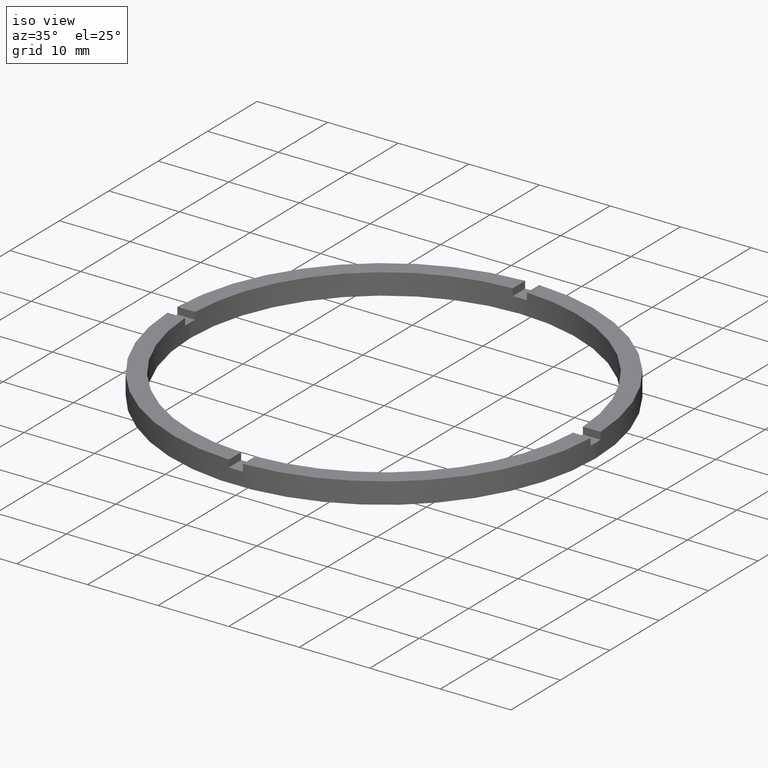
[diagram: clean part render]
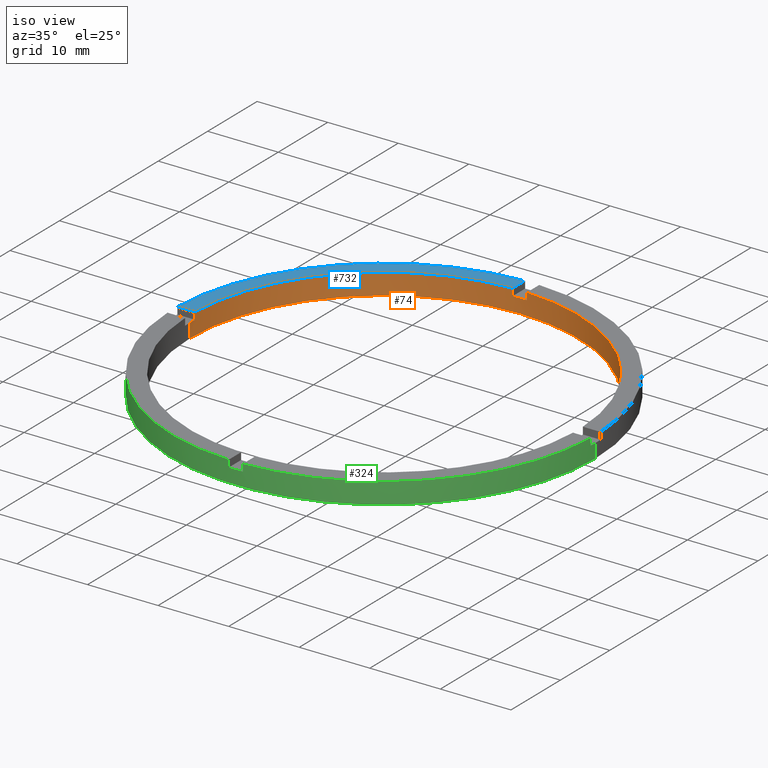
[diagram: same view with three faces highlighted in distinct colors, each labeled with its STEP entity id]
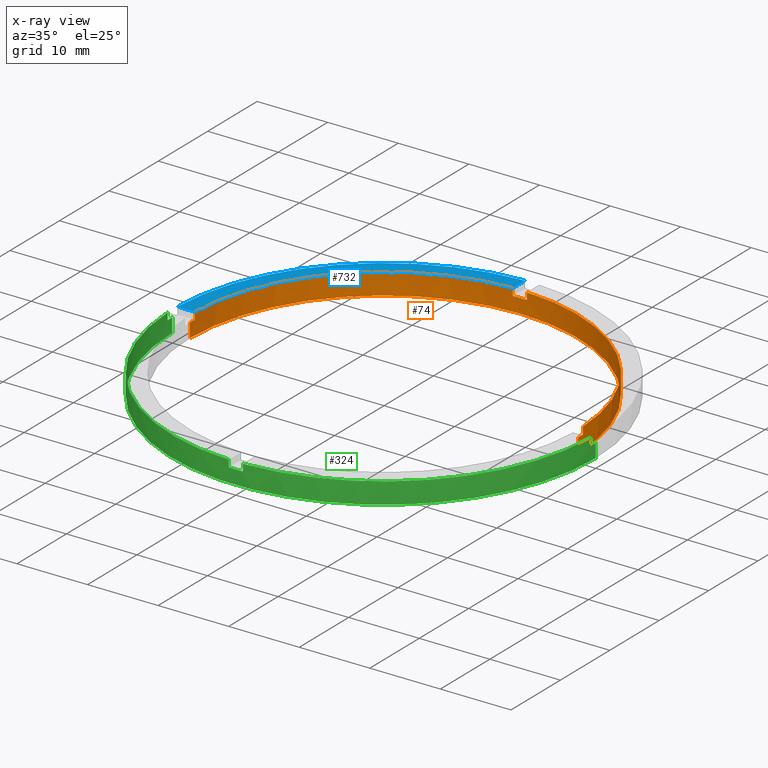
[diagram: x-ray of the same camera — body ghosted, the three highlighted faces saturated]
A machine part, iso view with three faces highlighted in distinct colors.
The next image is the same camera in x-ray (body ghosted, the three faces saturated) — at least one of them is partly hidden behind the body in this view.
Their STEP definitions:

[orange] entity #74 — the highlighted cylindrical surface (partial cylindrical patch) has radius 27.5 mm, axis along (-0, -0, -1).
#1 = ORIENTED_EDGE ( 'NONE', *, *, #58, .F. ) ;
#12 = CIRCLE ( 'NONE', #144, 27.50000000000000000 ) ;
#13 = CARTESIAN_POINT ( 'NONE',  ( 27.50000000000000000, 3.367778697655221307E-15, 2.000000000000000000 ) ) ;
#17 = DIRECTION ( 'NONE',  ( -1.000000000000000000, 0.000000000000000000, 0.000000000000000000 ) ) ;
#37 = EDGE_CURVE ( 'NONE', #721, #738, #426, .T. ) ;
#38 = CARTESIAN_POINT ( 'NONE',  ( -27.50000000000000000, 0.000000000000000000, 0.000000000000000000 ) ) ;
#40 = CARTESIAN_POINT ( 'NONE',  ( 0.9999999999999729106, 27.48181216732259102, 2.000000000000000000 ) ) ;
#41 = CARTESIAN_POINT ( 'NONE',  ( 27.50000000000000000, 3.367778697655221307E-15, 3.000000000000000000 ) ) ;
#47 = DIRECTION ( 'NONE',  ( 1.000000000000000000, 0.000000000000000000, 0.000000000000000000 ) ) ;
#58 = EDGE_CURVE ( 'NONE', #602, #535, #200, .T. ) ;
#60 = DIRECTION ( 'NONE',  ( 0.000000000000000000, -0.000000000000000000, 1.000000000000000000 ) ) ;
#73 = CARTESIAN_POINT ( 'NONE',  ( -27.48181216732259102, 0.9999999999999722444, 2.000000000000000000 ) ) ;
#74 = ADVANCED_FACE ( 'NONE', ( #453 ), #709, .F. ) ;
#81 = DIRECTION ( 'NONE',  ( -0.000000000000000000, -0.000000000000000000, -1.000000000000000000 ) ) ;
#95 = EDGE_CURVE ( 'NONE', #648, #143, #175, .T. ) ;
#98 = AXIS2_PLACEMENT_3D ( 'NONE', #223, #742, #125 ) ;
#100 = EDGE_CURVE ( 'NONE', #398, #535, #454, .T. ) ;
#105 = ORIENTED_EDGE ( 'NONE', *, *, #37, .F. ) ;
#111 = CARTESIAN_POINT ( 'NONE',  ( -27.48181216732259102, 0.9999999999999722444, 3.000000000000000000 ) ) ;
#119 = ORIENTED_EDGE ( 'NONE', *, *, #647, .F. ) ;
#122 = EDGE_CURVE ( 'NONE', #489, #370, #678, .T. ) ;
#123 = CARTESIAN_POINT ( 'NONE',  ( -1.000000000000027089, 27.48181216732259102, 3.000000000000000000 ) ) ;
#125 = DIRECTION ( 'NONE',  ( 1.000000000000000000, 0.000000000000000000, 0.000000000000000000 ) ) ;
#131 = CARTESIAN_POINT ( 'NONE',  ( -1.000000000000027089, 27.48181216732259102, 3.000000000000000000 ) ) ;
#137 = CARTESIAN_POINT ( 'NONE',  ( 27.48181216732259458, 0.9999999999998436806, 3.000000000000000000 ) ) ;
#143 = VERTEX_POINT ( 'NONE', #649 ) ;
#144 = AXIS2_PLACEMENT_3D ( 'NONE', #509, #606, #573 ) ;
#152 = ORIENTED_EDGE ( 'NONE', *, *, #100, .T. ) ;
#168 = VECTOR ( 'NONE', #588, 1000.000000000000000 ) ;
#175 = LINE ( 'NONE', #111, #459 ) ;
#187 = DIRECTION ( 'NONE',  ( 0.000000000000000000, 0.000000000000000000, 1.000000000000000000 ) ) ;
#197 = VECTOR ( 'NONE', #326, 1000.000000000000000 ) ;
#200 = LINE ( 'NONE', #315, #455 ) ;
#214 = VERTEX_POINT ( 'NONE', #460 ) ;
#222 = DIRECTION ( 'NONE',  ( 1.000000000000000000, 0.000000000000000000, 0.000000000000000000 ) ) ;
#223 = CARTESIAN_POINT ( 'NONE',  ( 0.000000000000000000, 0.000000000000000000, 0.000000000000000000 ) ) ;
#226 = VERTEX_POINT ( 'NONE', #458 ) ;
#241 = CARTESIAN_POINT ( 'NONE',  ( 0.000000000000000000, 0.000000000000000000, 3.000000000000000000 ) ) ;
#251 = VECTOR ( 'NONE', #330, 1000.000000000000000 ) ;
#264 = ORIENTED_EDGE ( 'NONE', *, *, #752, .F. ) ;
#277 = LINE ( 'NONE', #41, #523 ) ;
#278 = CARTESIAN_POINT ( 'NONE',  ( 0.9999999999999729106, 27.48181216732259102, 3.000000000000000000 ) ) ;
#299 = EDGE_CURVE ( 'NONE', #602, #738, #359, .T. ) ;
#308 = DIRECTION ( 'NONE',  ( -0.000000000000000000, -0.000000000000000000, -1.000000000000000000 ) ) ;
#315 = CARTESIAN_POINT ( 'NONE',  ( 27.48181216732259458, 0.9999999999998436806, 3.000000000000000000 ) ) ;
#318 = AXIS2_PLACEMENT_3D ( 'NONE', #751, #575, #585 ) ;
#319 = CARTESIAN_POINT ( 'NONE',  ( 0.9999999999999729106, 27.48181216732259102, 3.000000000000000000 ) ) ;
#326 = DIRECTION ( 'NONE',  ( -0.000000000000000000, -0.000000000000000000, -1.000000000000000000 ) ) ;
#330 = DIRECTION ( 'NONE',  ( -0.000000000000000000, -0.000000000000000000, -1.000000000000000000 ) ) ;
#334 = DIRECTION ( 'NONE',  ( 0.000000000000000000, 0.000000000000000000, 1.000000000000000000 ) ) ;
#339 = CARTESIAN_POINT ( 'NONE',  ( 0.000000000000000000, 0.000000000000000000, 3.000000000000000000 ) ) ;
#341 = EDGE_CURVE ( 'NONE', #721, #226, #569, .T. ) ;
#357 = CARTESIAN_POINT ( 'NONE',  ( 0.000000000000000000, 0.000000000000000000, 2.000000000000000000 ) ) ;
#358 = AXIS2_PLACEMENT_3D ( 'NONE', #339, #334, #222 ) ;
#359 = CIRCLE ( 'NONE', #318, 27.50000000000000000 ) ;
#361 = CARTESIAN_POINT ( 'NONE',  ( 27.48181216732259458, 0.9999999999998436806, 2.000000000000000000 ) ) ;
#370 = VERTEX_POINT ( 'NONE', #38 ) ;
#379 = ORIENTED_EDGE ( 'NONE', *, *, #95, .F. ) ;
#398 = VERTEX_POINT ( 'NONE', #13 ) ;
#426 = LINE ( 'NONE', #319, #168 ) ;
#427 = CARTESIAN_POINT ( 'NONE',  ( -27.50000000000000000, 0.000000000000000000, 2.000000000000000000 ) ) ;
#444 = CARTESIAN_POINT ( 'NONE',  ( 0.000000000000000000, 0.000000000000000000, 2.000000000000000000 ) ) ;
#453 = FACE_OUTER_BOUND ( 'NONE', #728, .T. ) ;
#454 = CIRCLE ( 'NONE', #601, 27.50000000000000000 ) ;
#455 = VECTOR ( 'NONE', #550, 1000.000000000000000 ) ;
#458 = CARTESIAN_POINT ( 'NONE',  ( -1.000000000000027089, 27.48181216732259102, 2.000000000000000000 ) ) ;
#459 = VECTOR ( 'NONE', #187, 1000.000000000000000 ) ;
#460 = CARTESIAN_POINT ( 'NONE',  ( 27.50000000000000000, 3.367778697655221307E-15, 0.000000000000000000 ) ) ;
#483 = AXIS2_PLACEMENT_3D ( 'NONE', #241, #308, #17 ) ;
#489 = VERTEX_POINT ( 'NONE', #427 ) ;
#509 = CARTESIAN_POINT ( 'NONE',  ( 0.000000000000000000, 0.000000000000000000, 2.000000000000000000 ) ) ;
#511 = ORIENTED_EDGE ( 'NONE', *, *, #697, .T. ) ;
#512 = CIRCLE ( 'NONE', #358, 27.50000000000000000 ) ;
#521 = ORIENTED_EDGE ( 'NONE', *, *, #122, .T. ) ;
#523 = VECTOR ( 'NONE', #81, 1000.000000000000000 ) ;
#524 = LINE ( 'NONE', #123, #251 ) ;
#534 = CIRCLE ( 'NONE', #98, 27.50000000000000000 ) ;
#535 = VERTEX_POINT ( 'NONE', #361 ) ;
#550 = DIRECTION ( 'NONE',  ( -0.000000000000000000, -0.000000000000000000, -1.000000000000000000 ) ) ;
#562 = DIRECTION ( 'NONE',  ( 1.000000000000000000, 0.000000000000000000, 0.000000000000000000 ) ) ;
#569 = CIRCLE ( 'NONE', #584, 27.50000000000000000 ) ;
#573 = DIRECTION ( 'NONE',  ( 1.000000000000000000, 0.000000000000000000, 0.000000000000000000 ) ) ;
#575 = DIRECTION ( 'NONE',  ( 0.000000000000000000, 0.000000000000000000, 1.000000000000000000 ) ) ;
#576 = DIRECTION ( 'NONE',  ( 0.000000000000000000, -0.000000000000000000, 1.000000000000000000 ) ) ;
#578 = EDGE_CURVE ( 'NONE', #770, #143, #512, .T. ) ;
#584 = AXIS2_PLACEMENT_3D ( 'NONE', #444, #576, #47 ) ;
#585 = DIRECTION ( 'NONE',  ( 1.000000000000000000, 0.000000000000000000, 0.000000000000000000 ) ) ;
#588 = DIRECTION ( 'NONE',  ( 0.000000000000000000, 0.000000000000000000, 1.000000000000000000 ) ) ;
#601 = AXIS2_PLACEMENT_3D ( 'NONE', #357, #60, #562 ) ;
#602 = VERTEX_POINT ( 'NONE', #137 ) ;
#606 = DIRECTION ( 'NONE',  ( 0.000000000000000000, 0.000000000000000000, 1.000000000000000000 ) ) ;
#647 = EDGE_CURVE ( 'NONE', #770, #226, #524, .T. ) ;
#648 = VERTEX_POINT ( 'NONE', #73 ) ;
#649 = CARTESIAN_POINT ( 'NONE',  ( -27.48181216732259102, 0.9999999999999722444, 3.000000000000000000 ) ) ;
#652 = ORIENTED_EDGE ( 'NONE', *, *, #341, .T. ) ;
#678 = LINE ( 'NONE', #723, #197 ) ;
#684 = ORIENTED_EDGE ( 'NONE', *, *, #299, .T. ) ;
#697 = EDGE_CURVE ( 'NONE', #648, #489, #12, .T. ) ;
#709 = CYLINDRICAL_SURFACE ( 'NONE', #483, 27.50000000000000000 ) ;
#721 = VERTEX_POINT ( 'NONE', #40 ) ;
#723 = CARTESIAN_POINT ( 'NONE',  ( -27.50000000000000000, 0.000000000000000000, 3.000000000000000000 ) ) ;
#728 = EDGE_LOOP ( 'NONE', ( #763, #152, #1, #684, #105, #652, #119, #774, #379, #511, #521, #264 ) ) ;
#738 = VERTEX_POINT ( 'NONE', #278 ) ;
#742 = DIRECTION ( 'NONE',  ( 0.000000000000000000, 0.000000000000000000, 1.000000000000000000 ) ) ;
#751 = CARTESIAN_POINT ( 'NONE',  ( 0.000000000000000000, 0.000000000000000000, 3.000000000000000000 ) ) ;
#752 = EDGE_CURVE ( 'NONE', #214, #370, #534, .T. ) ;
#762 = EDGE_CURVE ( 'NONE', #398, #214, #277, .T. ) ;
#763 = ORIENTED_EDGE ( 'NONE', *, *, #762, .F. ) ;
#770 = VERTEX_POINT ( 'NONE', #131 ) ;
#774 = ORIENTED_EDGE ( 'NONE', *, *, #578, .T. ) ;

[blue] entity #732 — the highlighted planar face has unit normal (0, 0, 1).
#79 = EDGE_CURVE ( 'NONE', #143, #208, #695, .T. ) ;
#131 = CARTESIAN_POINT ( 'NONE',  ( -1.000000000000027089, 27.48181216732259102, 3.000000000000000000 ) ) ;
#135 = CARTESIAN_POINT ( 'NONE',  ( 0.000000000000000000, 0.000000000000000000, 3.000000000000000000 ) ) ;
#143 = VERTEX_POINT ( 'NONE', #649 ) ;
#147 = ORIENTED_EDGE ( 'NONE', *, *, #578, .F. ) ;
#207 = DIRECTION ( 'NONE',  ( 0.000000000000000000, 0.000000000000000000, 1.000000000000000000 ) ) ;
#208 = VERTEX_POINT ( 'NONE', #587 ) ;
#219 = DIRECTION ( 'NONE',  ( 0.000000000000000000, 0.000000000000000000, 1.000000000000000000 ) ) ;
#222 = DIRECTION ( 'NONE',  ( 1.000000000000000000, 0.000000000000000000, 0.000000000000000000 ) ) ;
#266 = LINE ( 'NONE', #436, #538 ) ;
#287 = DIRECTION ( 'NONE',  ( 1.000000000000000000, 0.000000000000000000, 0.000000000000000000 ) ) ;
#312 = CIRCLE ( 'NONE', #662, 30.00000000000000000 ) ;
#334 = DIRECTION ( 'NONE',  ( 0.000000000000000000, 0.000000000000000000, 1.000000000000000000 ) ) ;
#339 = CARTESIAN_POINT ( 'NONE',  ( 0.000000000000000000, 0.000000000000000000, 3.000000000000000000 ) ) ;
#350 = EDGE_CURVE ( 'NONE', #753, #208, #312, .T. ) ;
#351 = ORIENTED_EDGE ( 'NONE', *, *, #79, .F. ) ;
#358 = AXIS2_PLACEMENT_3D ( 'NONE', #339, #334, #222 ) ;
#391 = CARTESIAN_POINT ( 'NONE',  ( -20.00000000000018119, 0.9999999999999737987, 3.000000000000000000 ) ) ;
#406 = EDGE_LOOP ( 'NONE', ( #607, #653, #351, #147 ) ) ;
#436 = CARTESIAN_POINT ( 'NONE',  ( -1.000000000000027311, 19.99999999999999645, 3.000000000000000000 ) ) ;
#441 = CARTESIAN_POINT ( 'NONE',  ( -1.000000000000027089, 29.98332870112989568, 3.000000000000000000 ) ) ;
#449 = PLANE ( 'NONE',  #755 ) ;
#496 = EDGE_CURVE ( 'NONE', #753, #770, #266, .T. ) ;
#508 = FACE_OUTER_BOUND ( 'NONE', #406, .T. ) ;
#512 = CIRCLE ( 'NONE', #358, 27.50000000000000000 ) ;
#538 = VECTOR ( 'NONE', #593, 1000.000000000000000 ) ;
#542 = DIRECTION ( 'NONE',  ( -1.000000000000000000, -1.951563910473907735E-16, 0.000000000000000000 ) ) ;
#578 = EDGE_CURVE ( 'NONE', #770, #143, #512, .T. ) ;
#587 = CARTESIAN_POINT ( 'NONE',  ( -29.98332870112989923, 0.9999999999999718003, 3.000000000000000000 ) ) ;
#593 = DIRECTION ( 'NONE',  ( -2.168404344971008560E-17, -1.000000000000000000, -0.000000000000000000 ) ) ;
#607 = ORIENTED_EDGE ( 'NONE', *, *, #496, .F. ) ;
#649 = CARTESIAN_POINT ( 'NONE',  ( -27.48181216732259102, 0.9999999999999722444, 3.000000000000000000 ) ) ;
#653 = ORIENTED_EDGE ( 'NONE', *, *, #350, .T. ) ;
#658 = CARTESIAN_POINT ( 'NONE',  ( 0.000000000000000000, 0.000000000000000000, 3.000000000000000000 ) ) ;
#662 = AXIS2_PLACEMENT_3D ( 'NONE', #135, #219, #287 ) ;
#695 = LINE ( 'NONE', #391, #702 ) ;
#702 = VECTOR ( 'NONE', #542, 1000.000000000000000 ) ;
#732 = ADVANCED_FACE ( 'NONE', ( #508 ), #449, .T. ) ;
#735 = DIRECTION ( 'NONE',  ( 1.000000000000000000, 0.000000000000000000, -0.000000000000000000 ) ) ;
#753 = VERTEX_POINT ( 'NONE', #441 ) ;
#755 = AXIS2_PLACEMENT_3D ( 'NONE', #658, #207, #735 ) ;
#770 = VERTEX_POINT ( 'NONE', #131 ) ;

[green] entity #324 — the highlighted cylindrical surface (partial cylindrical patch) has radius 30 mm, axis along (-0, -0, -1).
#2 = VECTOR ( 'NONE', #181, 1000.000000000000000 ) ;
#3 = ORIENTED_EDGE ( 'NONE', *, *, #628, .T. ) ;
#7 = DIRECTION ( 'NONE',  ( 0.000000000000000000, 0.000000000000000000, 1.000000000000000000 ) ) ;
#9 = CIRCLE ( 'NONE', #631, 30.00000000000000000 ) ;
#32 = CARTESIAN_POINT ( 'NONE',  ( 0.000000000000000000, 0.000000000000000000, 3.000000000000000000 ) ) ;
#50 = CARTESIAN_POINT ( 'NONE',  ( -1.000000000000158984, -29.98332870112989212, 3.000000000000000000 ) ) ;
#54 = DIRECTION ( 'NONE',  ( 0.000000000000000000, -0.000000000000000000, 1.000000000000000000 ) ) ;
#56 = DIRECTION ( 'NONE',  ( 1.000000000000000000, 0.000000000000000000, 0.000000000000000000 ) ) ;
#72 = CARTESIAN_POINT ( 'NONE',  ( -1.000000000000158984, -29.98332870112989212, 3.000000000000000000 ) ) ;
#75 = CARTESIAN_POINT ( 'NONE',  ( 29.98332870112989212, -1.000000000000156097, 3.000000000000000000 ) ) ;
#77 = DIRECTION ( 'NONE',  ( -0.000000000000000000, -0.000000000000000000, -1.000000000000000000 ) ) ;
#84 = DIRECTION ( 'NONE',  ( 1.000000000000000000, 0.000000000000000000, 0.000000000000000000 ) ) ;
#99 = LINE ( 'NONE', #50, #730 ) ;
#106 = AXIS2_PLACEMENT_3D ( 'NONE', #664, #613, #84 ) ;
#107 = CARTESIAN_POINT ( 'NONE',  ( -29.98332870112989568, -1.000000000000028200, 3.000000000000000000 ) ) ;
#110 = EDGE_CURVE ( 'NONE', #661, #235, #437, .T. ) ;
#113 = VERTEX_POINT ( 'NONE', #72 ) ;
#115 = DIRECTION ( 'NONE',  ( 1.000000000000000000, 0.000000000000000000, 0.000000000000000000 ) ) ;
#118 = ORIENTED_EDGE ( 'NONE', *, *, #336, .F. ) ;
#129 = CARTESIAN_POINT ( 'NONE',  ( 0.9999999999998411271, -29.98332870112990278, 2.000000000000000000 ) ) ;
#134 = EDGE_CURVE ( 'NONE', #225, #670, #184, .T. ) ;
#139 = CARTESIAN_POINT ( 'NONE',  ( -29.98332870112989568, -1.000000000000028200, 2.000000000000000000 ) ) ;
#156 = CARTESIAN_POINT ( 'NONE',  ( 30.00000000000000000, 3.673940397442059178E-15, 3.000000000000000000 ) ) ;
#167 = VERTEX_POINT ( 'NONE', #603 ) ;
#179 = EDGE_LOOP ( 'NONE', ( #217, #626, #388, #669, #386, #118, #384, #246, #526, #259, #248, #3 ) ) ;
#181 = DIRECTION ( 'NONE',  ( -0.000000000000000000, -0.000000000000000000, -1.000000000000000000 ) ) ;
#183 = EDGE_CURVE ( 'NONE', #167, #670, #433, .T. ) ;
#184 = CIRCLE ( 'NONE', #337, 30.00000000000000000 ) ;
#190 = AXIS2_PLACEMENT_3D ( 'NONE', #316, #7, #552 ) ;
#191 = CARTESIAN_POINT ( 'NONE',  ( 0.000000000000000000, 0.000000000000000000, 2.000000000000000000 ) ) ;
#213 = CARTESIAN_POINT ( 'NONE',  ( -29.98332870112989568, -1.000000000000028200, 3.000000000000000000 ) ) ;
#217 = ORIENTED_EDGE ( 'NONE', *, *, #110, .F. ) ;
#225 = VERTEX_POINT ( 'NONE', #228 ) ;
#228 = CARTESIAN_POINT ( 'NONE',  ( 0.9999999999998411271, -29.98332870112990278, 3.000000000000000000 ) ) ;
#229 = CYLINDRICAL_SURFACE ( 'NONE', #771, 30.00000000000000000 ) ;
#235 = VERTEX_POINT ( 'NONE', #623 ) ;
#239 = EDGE_CURVE ( 'NONE', #167, #661, #700, .T. ) ;
#246 = ORIENTED_EDGE ( 'NONE', *, *, #476, .F. ) ;
#248 = ORIENTED_EDGE ( 'NONE', *, *, #577, .T. ) ;
#259 = ORIENTED_EDGE ( 'NONE', *, *, #656, .F. ) ;
#291 = DIRECTION ( 'NONE',  ( -0.000000000000000000, -0.000000000000000000, -1.000000000000000000 ) ) ;
#314 = EDGE_CURVE ( 'NONE', #714, #113, #99, .T. ) ;
#316 = CARTESIAN_POINT ( 'NONE',  ( 0.000000000000000000, 0.000000000000000000, 3.000000000000000000 ) ) ;
#324 = ADVANCED_FACE ( 'NONE', ( #726 ), #229, .T. ) ;
#325 = CARTESIAN_POINT ( 'NONE',  ( 30.00000000000000000, 3.673940397442059178E-15, 2.000000000000000000 ) ) ;
#336 = EDGE_CURVE ( 'NONE', #714, #708, #568, .T. ) ;
#337 = AXIS2_PLACEMENT_3D ( 'NONE', #32, #494, #115 ) ;
#345 = DIRECTION ( 'NONE',  ( -0.000000000000000000, -0.000000000000000000, -1.000000000000000000 ) ) ;
#384 = ORIENTED_EDGE ( 'NONE', *, *, #314, .T. ) ;
#385 = DIRECTION ( 'NONE',  ( -0.000000000000000000, -0.000000000000000000, -1.000000000000000000 ) ) ;
#386 = ORIENTED_EDGE ( 'NONE', *, *, #737, .T. ) ;
#388 = ORIENTED_EDGE ( 'NONE', *, *, #183, .T. ) ;
#429 = VECTOR ( 'NONE', #345, 1000.000000000000000 ) ;
#433 = LINE ( 'NONE', #75, #703 ) ;
#437 = LINE ( 'NONE', #156, #429 ) ;
#457 = CARTESIAN_POINT ( 'NONE',  ( 0.9999999999998411271, -29.98332870112990278, 3.000000000000000000 ) ) ;
#467 = EDGE_CURVE ( 'NONE', #739, #746, #773, .T. ) ;
#476 = EDGE_CURVE ( 'NONE', #739, #113, #775, .T. ) ;
#477 = VERTEX_POINT ( 'NONE', #645 ) ;
#488 = VERTEX_POINT ( 'NONE', #719 ) ;
#494 = DIRECTION ( 'NONE',  ( 0.000000000000000000, 0.000000000000000000, 1.000000000000000000 ) ) ;
#500 = VECTOR ( 'NONE', #291, 1000.000000000000000 ) ;
#502 = LINE ( 'NONE', #619, #500 ) ;
#518 = LINE ( 'NONE', #457, #778 ) ;
#526 = ORIENTED_EDGE ( 'NONE', *, *, #467, .T. ) ;
#530 = DIRECTION ( 'NONE',  ( 0.000000000000000000, 0.000000000000000000, 1.000000000000000000 ) ) ;
#552 = DIRECTION ( 'NONE',  ( 1.000000000000000000, 0.000000000000000000, 0.000000000000000000 ) ) ;
#556 = DIRECTION ( 'NONE',  ( 0.000000000000000000, 0.000000000000000000, 1.000000000000000000 ) ) ;
#560 = AXIS2_PLACEMENT_3D ( 'NONE', #727, #594, #713 ) ;
#567 = CARTESIAN_POINT ( 'NONE',  ( -1.000000000000158984, -29.98332870112989212, 2.000000000000000000 ) ) ;
#568 = CIRCLE ( 'NONE', #106, 30.00000000000000000 ) ;
#571 = CARTESIAN_POINT ( 'NONE',  ( 29.98332870112989212, -1.000000000000156097, 3.000000000000000000 ) ) ;
#577 = EDGE_CURVE ( 'NONE', #477, #488, #502, .T. ) ;
#581 = CARTESIAN_POINT ( 'NONE',  ( 0.000000000000000000, 0.000000000000000000, 3.000000000000000000 ) ) ;
#582 = CARTESIAN_POINT ( 'NONE',  ( 0.000000000000000000, 0.000000000000000000, 2.000000000000000000 ) ) ;
#594 = DIRECTION ( 'NONE',  ( 0.000000000000000000, 0.000000000000000000, 1.000000000000000000 ) ) ;
#603 = CARTESIAN_POINT ( 'NONE',  ( 29.98332870112989212, -1.000000000000156097, 2.000000000000000000 ) ) ;
#609 = DIRECTION ( 'NONE',  ( 1.000000000000000000, 0.000000000000000000, 0.000000000000000000 ) ) ;
#613 = DIRECTION ( 'NONE',  ( -0.000000000000000000, 0.000000000000000000, 1.000000000000000000 ) ) ;
#619 = CARTESIAN_POINT ( 'NONE',  ( -30.00000000000000000, 0.000000000000000000, 3.000000000000000000 ) ) ;
#623 = CARTESIAN_POINT ( 'NONE',  ( 30.00000000000000000, 3.673940397442059178E-15, 0.000000000000000000 ) ) ;
#626 = ORIENTED_EDGE ( 'NONE', *, *, #239, .F. ) ;
#628 = EDGE_CURVE ( 'NONE', #488, #235, #761, .T. ) ;
#631 = AXIS2_PLACEMENT_3D ( 'NONE', #191, #556, #609 ) ;
#645 = CARTESIAN_POINT ( 'NONE',  ( -30.00000000000000000, 0.000000000000000000, 2.000000000000000000 ) ) ;
#656 = EDGE_CURVE ( 'NONE', #477, #746, #9, .T. ) ;
#661 = VERTEX_POINT ( 'NONE', #325 ) ;
#664 = CARTESIAN_POINT ( 'NONE',  ( 0.000000000000000000, 0.000000000000000000, 2.000000000000000000 ) ) ;
#669 = ORIENTED_EDGE ( 'NONE', *, *, #134, .F. ) ;
#670 = VERTEX_POINT ( 'NONE', #571 ) ;
#676 = DIRECTION ( 'NONE',  ( -1.000000000000000000, 0.000000000000000000, 0.000000000000000000 ) ) ;
#700 = CIRCLE ( 'NONE', #715, 30.00000000000000000 ) ;
#703 = VECTOR ( 'NONE', #729, 1000.000000000000000 ) ;
#708 = VERTEX_POINT ( 'NONE', #129 ) ;
#713 = DIRECTION ( 'NONE',  ( 1.000000000000000000, 0.000000000000000000, 0.000000000000000000 ) ) ;
#714 = VERTEX_POINT ( 'NONE', #567 ) ;
#715 = AXIS2_PLACEMENT_3D ( 'NONE', #582, #54, #56 ) ;
#719 = CARTESIAN_POINT ( 'NONE',  ( -30.00000000000000000, 0.000000000000000000, 0.000000000000000000 ) ) ;
#726 = FACE_OUTER_BOUND ( 'NONE', #179, .T. ) ;
#727 = CARTESIAN_POINT ( 'NONE',  ( 0.000000000000000000, 0.000000000000000000, 0.000000000000000000 ) ) ;
#729 = DIRECTION ( 'NONE',  ( 0.000000000000000000, 0.000000000000000000, 1.000000000000000000 ) ) ;
#730 = VECTOR ( 'NONE', #530, 1000.000000000000000 ) ;
#737 = EDGE_CURVE ( 'NONE', #225, #708, #518, .T. ) ;
#739 = VERTEX_POINT ( 'NONE', #213 ) ;
#746 = VERTEX_POINT ( 'NONE', #139 ) ;
#761 = CIRCLE ( 'NONE', #560, 30.00000000000000000 ) ;
#771 = AXIS2_PLACEMENT_3D ( 'NONE', #581, #385, #676 ) ;
#773 = LINE ( 'NONE', #107, #2 ) ;
#775 = CIRCLE ( 'NONE', #190, 30.00000000000000000 ) ;
#778 = VECTOR ( 'NONE', #77, 1000.000000000000000 ) ;